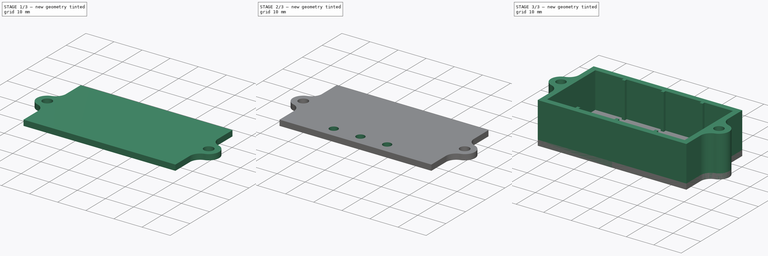
[diagram: build sequence overview — one tinted view per stage of 3, left to right]
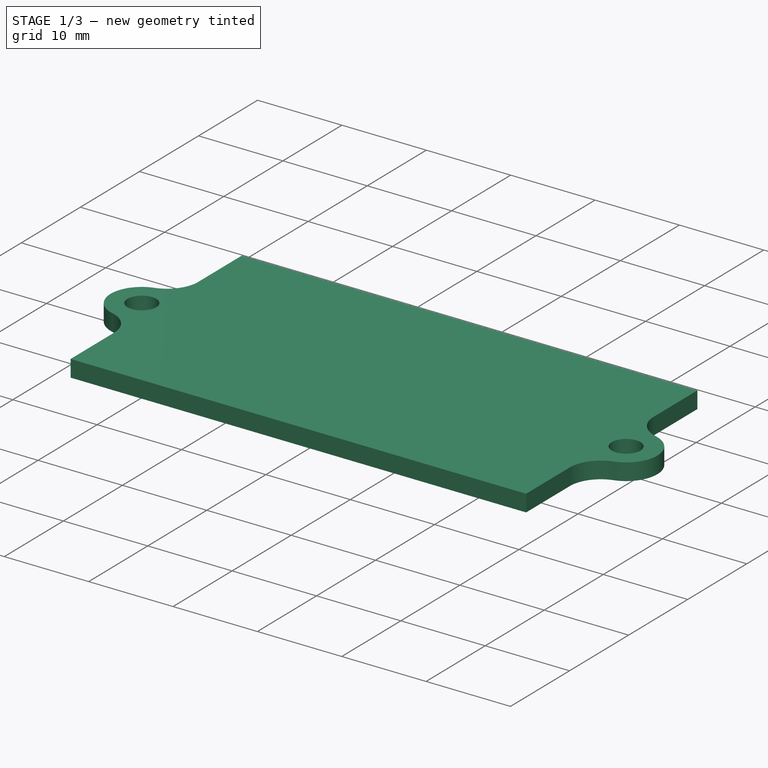
[diagram: stage 1 of 3 — iso view after this stage's code; geometry added in this stage tinted green]
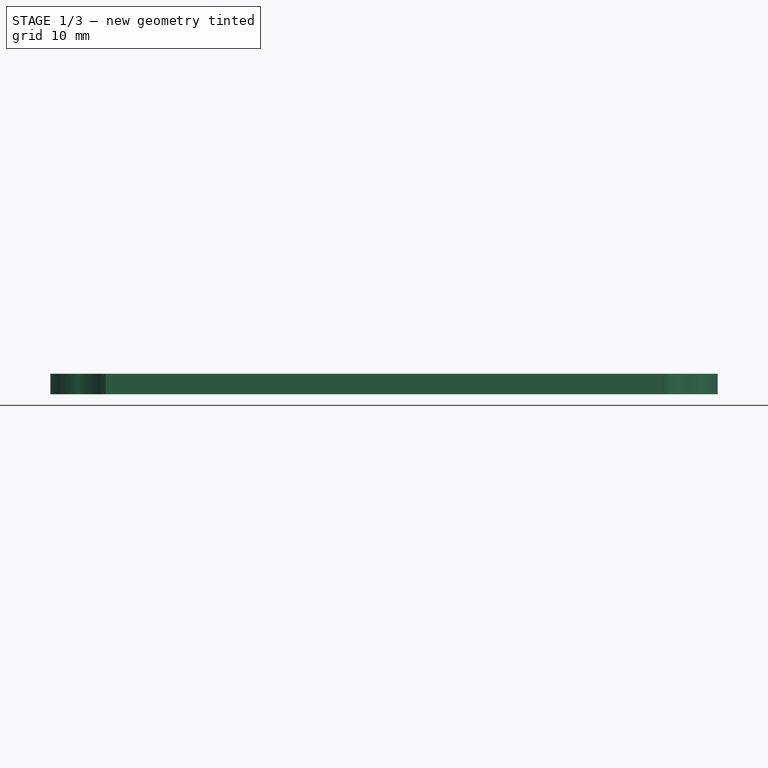
[diagram: stage 1 of 3 — front view after this stage's code; geometry added in this stage tinted green]
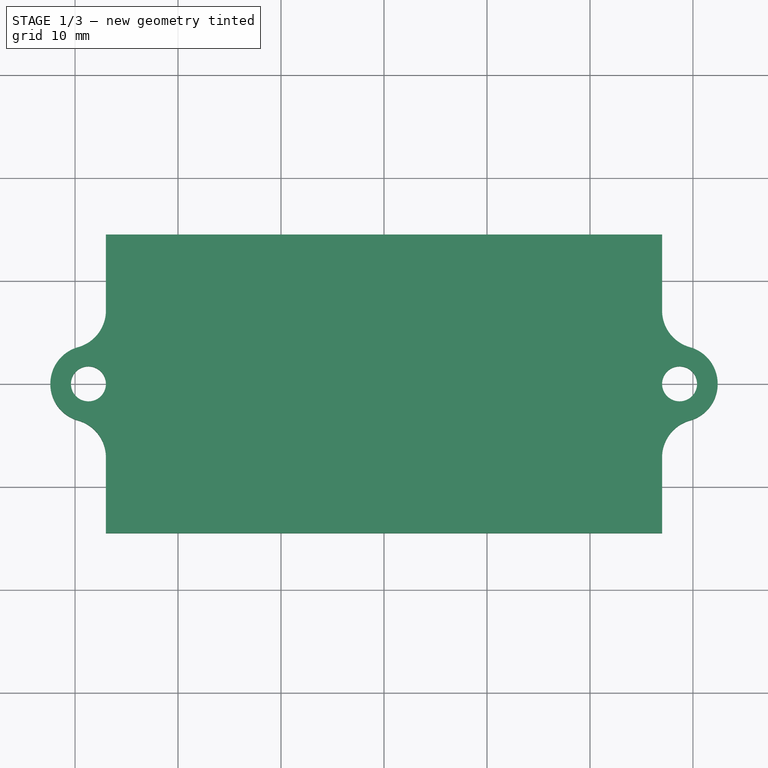
[diagram: stage 1 of 3 — top view after this stage's code; geometry added in this stage tinted green]
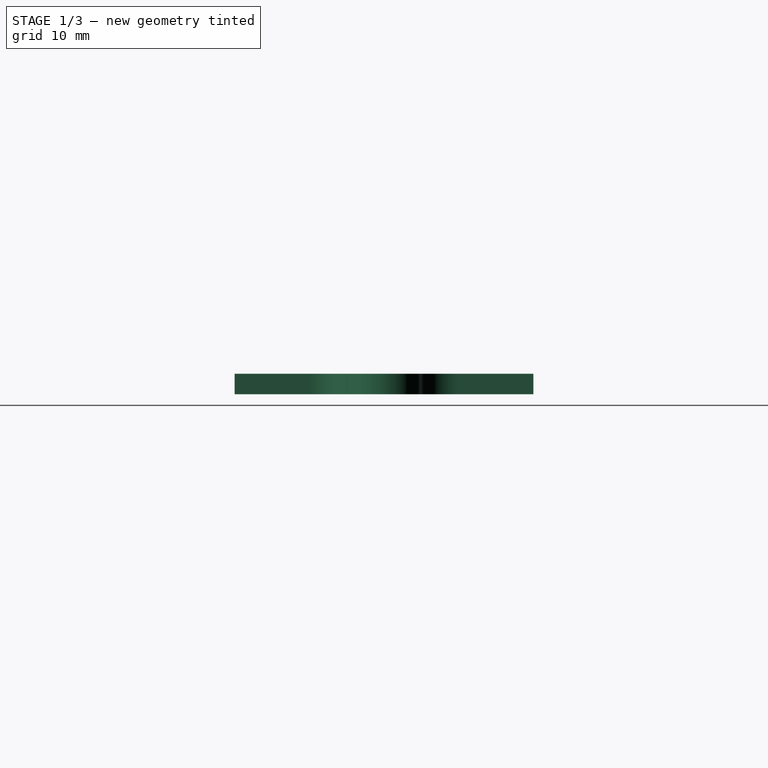
[diagram: stage 1 of 3 — right view after this stage's code; geometry added in this stage tinted green]
FCSTD DOCUMENT  (FreeCAD 0.19R24291 (Git))
Label: HLS-4078-DC5V_casing
License: All rights reserved
LicenseURL: http://en.wikipedia.org/wiki/All_rights_reserved
objects: Sketcher::SketchObject×4, PartDesign::Mirrored×4, PartDesign::Pad×3, PartDesign::MultiTransform×2, PartDesign::Body×2, Spreadsheet::Sheet×1, PartDesign::Pocket×1
note: 20 computed .brp shape members not serialized (recipe doc carries the construction recipe); baked Part::Feature solids carry a one-line shape summary decoded from their .brp

FEATURE [PartDesign::Body] Body  label="casing"
  Group = -> [Sketch,Sketch001,Pad,Pad001,MultiTransform,Mirrored,Mirrored001]
  Origin = -> Origin
  Tip = -> MultiTransform
FEATURE [Sketcher::SketchObject] Sketch002
  FullyConstrained = true
  MapMode = 5
  Support = -> [XY_Plane001]
  expr: Constraints[21] = Spreadsheet.length / 2 + Spreadsheet.space + Spreadsheet.wall_thickness
  expr: Constraints[22] = Spreadsheet.width / 2 + Spreadsheet.space + Spreadsheet.wall_thickness
  expr: Constraints[23] = Spreadsheet.bolt_d
  expr: Constraints[24] = Spreadsheet.bolt_d + Spreadsheet.wall_thickness * 2
  sketch-geometry (8):
    g0: LineSegment StartX=0 StartY=0 StartZ=0 EndX=27 EndY=0 EndZ=0
    g1: LineSegment StartX=27 StartY=7.12461 StartZ=0 EndX=27 EndY=14.5 EndZ=0
    g2: LineSegment StartX=27 StartY=14.5 StartZ=0 EndX=0 EndY=14.5 EndZ=0
    g3: LineSegment StartX=0 StartY=14.5 StartZ=0 EndX=0 EndY=0 EndZ=0
    g4: ArcOfCircle CenterX=28.7 CenterY=0 CenterZ=0 NormalX=0 NormalY=0 NormalZ=1 AngleXU=0 Radius=1.7 StartAngle=0 EndAngle=3.14159
    g5: ArcOfCircle CenterX=28.7 CenterY=0 CenterZ=0 NormalX=0 NormalY=0 NormalZ=1 AngleXU=0 Radius=3.7 StartAngle=0 EndAngle=1.29713
    g6: ArcOfCircle CenterX=30.7 CenterY=7.12461 CenterZ=0 NormalX=0 NormalY=0 NormalZ=1 AngleXU=0 Radius=3.7 StartAngle=3.14159 EndAngle=4.43871
    g7: LineSegment StartX=30.4 StartY=0 StartZ=0 EndX=32.4 EndY=0 EndZ=0
  constraints (25):
    c: Coincident(g1,g2)
    c: Coincident(g2,g3)
    c: Coincident(g3,g0)
    c: Horizontal(g0)
    c: Horizontal(g2)
    c: Vertical(g1)
    c: Vertical(g3)
    c: Coincident(g0,g-1)
    c: PointOnObject(g4,g-1)
    c: Coincident(g4,g0)
    c: PointOnObject(g4,g-1)
    c: Coincident(g5,g4)
    c: PointOnObject(g5,g-1)
    c: Coincident(g6,g5)
    c: Coincident(g1,g6)
    c: Vertical(g1,g0)
    c: Coincident(g7,g4)
    c: Coincident(g7,g5)
    c: Equal(g5,g6)
    c: Tangent(g6,g1)
    c: Tangent(g6,g5)
    c: Distance(g3) = 14.5
    c: Distance(g2) = 27
    c: Diameter(g4) = 3.4
    c: Diameter(g5) = 7.4
FEATURE [PartDesign::Pad] Pad002
  Direction = (1,1,1)
  Length = 2
  Length2 = 100
  Profile = -> Sketch002
  Type = 0
  expr: Length = Spreadsheet.wall_thickness
FEATURE [PartDesign::Mirrored] Mirrored002
  MirrorPlane = -> Sketch002 [V_Axis]
FEATURE [PartDesign::Mirrored] Mirrored003
  MirrorPlane = -> Sketch002 [H_Axis]
FEATURE [PartDesign::MultiTransform] MultiTransform001
  BaseFeature = -> Pad002
  Originals = -> [Pad002]
  Transformations = -> [Mirrored002,Mirrored003]
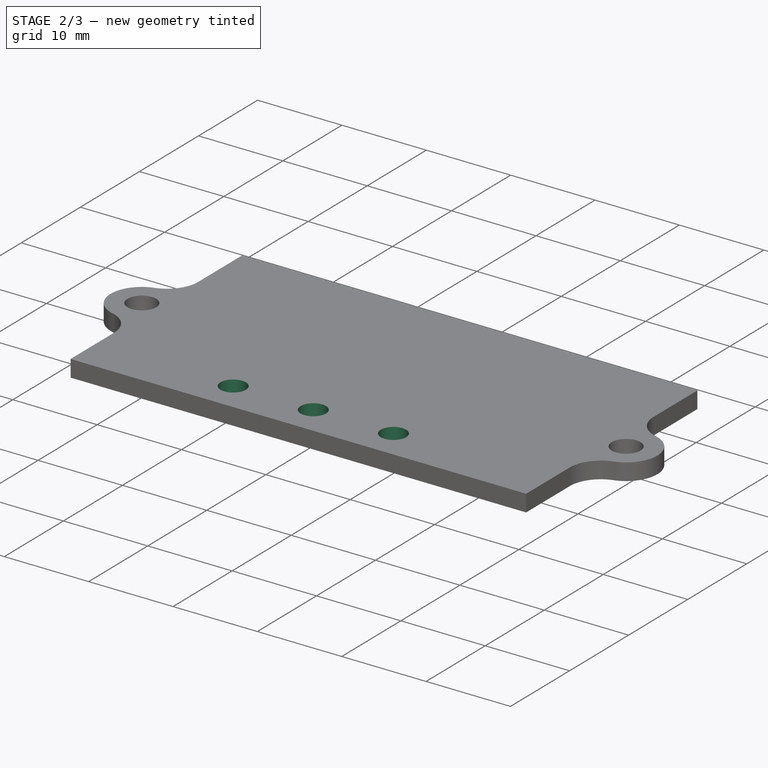
[diagram: stage 2 of 3 — iso view after this stage's code; geometry added in this stage tinted green]
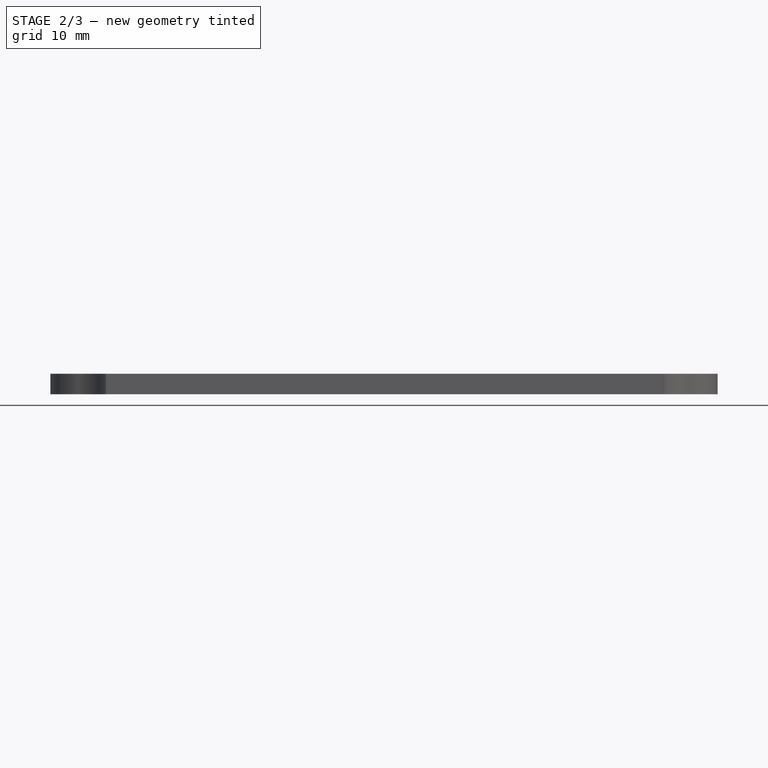
[diagram: stage 2 of 3 — front view after this stage's code; geometry added in this stage tinted green]
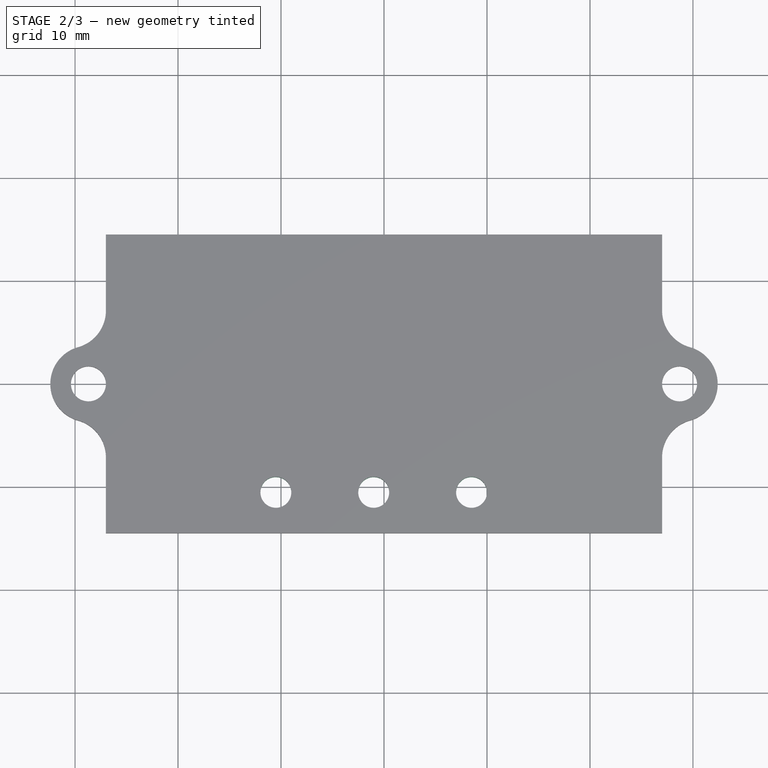
[diagram: stage 2 of 3 — top view after this stage's code; geometry added in this stage tinted green]
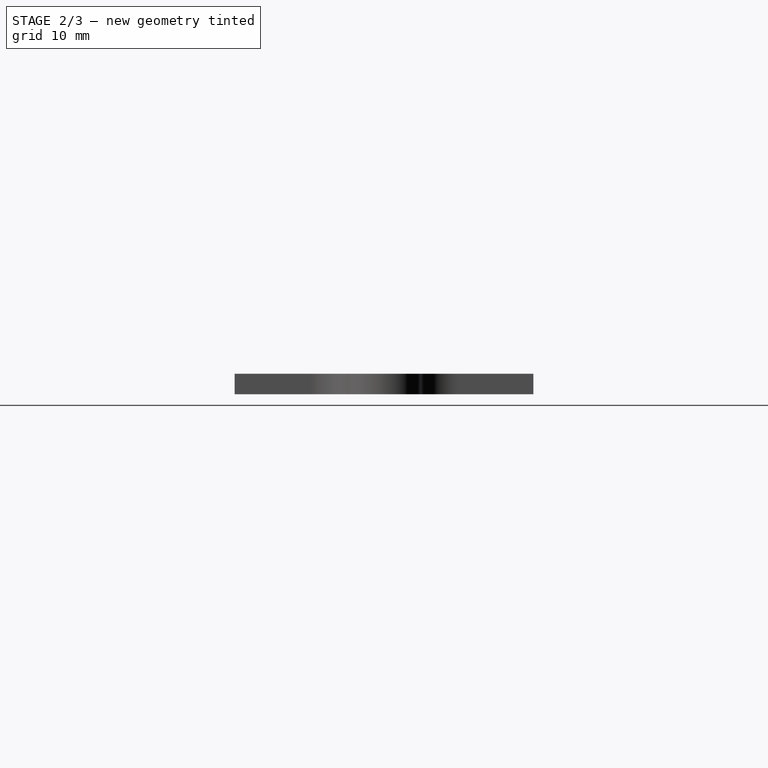
[diagram: stage 2 of 3 — right view after this stage's code; geometry added in this stage tinted green]
FEATURE [Sketcher::SketchObject] Sketch
  FullyConstrained = false
  MapMode = 5
  Support = -> [XY_Plane]
  expr: Constraints[6] = <<Spreadsheet>>.length / 2 + <<Spreadsheet>>.space
  expr: Constraints[5] = <<Spreadsheet>>.width / 2 + <<Spreadsheet>>.space
  expr: Constraints[21] = Spreadsheet.bolt_d
  expr: Constraints[17] = Spreadsheet.wall_thickness
  expr: Constraints[27] = Spreadsheet.bolt_d + Spreadsheet.wall_thickness * 2
  sketch-geometry (17):
    g0: LineSegment StartX=0.55 StartY=12.5 StartZ=0 EndX=13.589 EndY=12.5 EndZ=0
    g1: LineSegment StartX=25 StartY=12.5 StartZ=0 EndX=25 EndY=0 EndZ=0
    g2: LineSegment StartX=27 StartY=2e-16 StartZ=0 EndX=25 EndY=2e-16 EndZ=0
    g3: LineSegment StartX=0 StartY=12.5 StartZ=0 EndX=0 EndY=14.5 EndZ=0
    g4: LineSegment StartX=0 StartY=14.5 StartZ=0 EndX=27 EndY=14.5 EndZ=0
    g5: LineSegment StartX=27 StartY=14.5 StartZ=0 EndX=27 EndY=7.12461 EndZ=0
    g6: ArcOfCircle CenterX=28.7 CenterY=0 CenterZ=0 NormalX=0 NormalY=0 NormalZ=1 AngleXU=0 Radius=1.7 StartAngle=0 EndAngle=3.14159
    g7: ArcOfCircle CenterX=28.7 CenterY=0 CenterZ=0 NormalX=0 NormalY=0 NormalZ=1 AngleXU=0 Radius=3.7 StartAngle=0 EndAngle=1.29712
    g8: ArcOfCircle CenterX=30.7 CenterY=7.12461 CenterZ=0 NormalX=0 NormalY=0 NormalZ=1 AngleXU=0 Radius=3.7 StartAngle=3.14159 EndAngle=4.43872
    g9: LineSegment StartX=30.4 StartY=0 StartZ=0 EndX=32.4 EndY=0 EndZ=0
    g10: LineSegment StartX=0 StartY=11.5 StartZ=0 EndX=0.55 EndY=11.5 EndZ=0
    g11: LineSegment StartX=0.55 StartY=11.5 StartZ=0 EndX=0.55 EndY=12.5 EndZ=0
    g12: LineSegment StartX=0 StartY=11.5 StartZ=0 EndX=0 EndY=12.5 EndZ=0
    g13: LineSegment StartX=14.689 StartY=12.5 StartZ=0 EndX=14.689 EndY=11.5 EndZ=0
    g14: LineSegment StartX=14.689 StartY=11.5 StartZ=0 EndX=13.589 EndY=11.5 EndZ=0
    g15: LineSegment StartX=13.589 StartY=11.5 StartZ=0 EndX=13.589 EndY=12.5 EndZ=0
    g16: LineSegment StartX=14.689 StartY=12.5 StartZ=0 EndX=25 EndY=12.5 EndZ=0
  constraints (51):
    c: Coincident(g16,g1)
    c: Horizontal(g0)
    c: Vertical(g1)
    c: PointOnObject(g1,g-1)
    c: PointOnObject(g12,g-2)
    c: Distance(g1,g-1) = 25
    c: Distance(g-1,g12) = 12.5
    c: Coincident(g3,g4)
    c: Coincident(g4,g5)
    c: Horizontal(g2)
    c: Horizontal(g4)
    c: Vertical(g3)
    c: Vertical(g5)
    c: PointOnObject(g2,g-1)
    c: PointOnObject(g3,g0)
    c: PointOnObject(g2,g1)
    c: Equal(g2,g3)
    c: Distance(g3) = 2
    c: PointOnObject(g6,g-1)
    c: Coincident(g6,g2)
    c: PointOnObject(g6,g-1)
    c: Diameter(g6) = 3.4
    c: Coincident(g7,g6)
    c: PointOnObject(g7,g-1)
    c: Coincident(g8,g7)
    c: Tangent(g7,g8)
    c: Equal(g7,g8)
    c: Diameter(g7) = 7.4
    c: Tangent(g5,g8) = -1.5708
    c: Vertical(g2,g5)
    c: Coincident(g9,g6)
    c: Coincident(g9,g7)
    c: PointOnObject(g10,g-2)
    c: Horizontal(g10)
    c: Coincident(g10,g11)
    c: Vertical(g11)
    c: Coincident(g10,g12)
    c: Vertical(g13)
    c: Coincident(g13,g14)
    c: Horizontal(g14)
    c: Coincident(g14,g15)
    c: Vertical(g15)
    c: Distance(g14) = 1.1
    c: Distance(g13) = 1
    c: Distance(g10) = 0.55
    c: Distance(g11) = 1
    c: Coincident(g0,g15)
    c: Coincident(g16,g13)
    c: Tangent(g0,g16)
    c: Coincident(g0,g11)
    c: Coincident(g12,g3)
FEATURE [Spreadsheet::Sheet] Spreadsheet
  cells = B2(width)=48; C2(height)=13; B3(length)=23; B4(space)=1; B5(wall_thickness)=2; B6(bolt_d)=3.4
FEATURE [Sketcher::SketchObject] Sketch001
  FullyConstrained = true
  MapMode = 5
  Support = -> [XY_Plane]
  expr: Constraints[9] = <<Spreadsheet>>.length / 2 + <<Spreadsheet>>.space
  expr: Constraints[10] = <<Spreadsheet>>.width / 2 + <<Spreadsheet>>.space
  sketch-geometry (4):
    g0: LineSegment StartX=0 StartY=0 StartZ=0 EndX=25 EndY=0 EndZ=0
    g1: LineSegment StartX=25 StartY=0 StartZ=0 EndX=25 EndY=12.5 EndZ=0
    g2: LineSegment StartX=25 StartY=12.5 StartZ=0 EndX=0 EndY=12.5 EndZ=0
    g3: LineSegment StartX=0 StartY=12.5 StartZ=0 EndX=0 EndY=0 EndZ=0
  constraints (11):
    c: Coincident(g0,g1)
    c: Coincident(g1,g2)
    c: Coincident(g2,g3)
    c: Coincident(g3,g0)
    c: Horizontal(g0)
    c: Horizontal(g2)
    c: Vertical(g1)
    c: Vertical(g3)
    c: Coincident(g0,g-1)
    c: Distance(g1) = 12.5
    c: Distance(g0) = 25
FEATURE [PartDesign::Pad] Pad
  Direction = (1,1,1)
  Length = 2
  Length2 = 100
  Profile = -> Sketch001
  Type = 0
  expr: Length = <<Spreadsheet>>.wall_thickness
FEATURE [Sketcher::SketchObject] Sketch003
  FullyConstrained = true
  MapMode = 5
  Support = -> [XY_Plane001]
  expr: Constraints[9] = -(Spreadsheet.width / 2 - 5 - 9.5 + 1)
  expr: Constraints[11] = 9.5
  sketch-geometry (5):
    g0: Circle CenterX=-10.5 CenterY=-10.5371 CenterZ=0 NormalX=0 NormalY=0 NormalZ=1 AngleXU=0 Radius=1.5
    g1: Circle CenterX=-1 CenterY=-10.5371 CenterZ=0 NormalX=0 NormalY=0 NormalZ=1 AngleXU=0 Radius=1.5
    g2: Circle CenterX=8.5 CenterY=-10.5371 CenterZ=0 NormalX=0 NormalY=0 NormalZ=1 AngleXU=0 Radius=1.5
    g3: LineSegment StartX=-10.5 StartY=-10.5371 StartZ=0 EndX=-1 EndY=-10.5371 EndZ=0
    g4: LineSegment StartX=-1 StartY=-10.5371 StartZ=0 EndX=8.5 EndY=-10.5371 EndZ=0
  constraints (13):
    c: Equal(g0,g1)
    c: Equal(g1,g2)
    c: Horizontal(g0,g1)
    c: Horizontal(g1,g2)
    c: Coincident(g3,g0)
    c: Coincident(g3,g1)
    c: Coincident(g4,g1)
    c: Coincident(g4,g2)
    c: Equal(g4,g3)
    c: DistanceX(g0) = -10.5
    c: DistanceY(g0) = -10.5371
    c: Distance(g3) = 9.5
    c: Diameter(g2) = 3
FEATURE [PartDesign::Pocket] Pocket
  BaseFeature = -> MultiTransform001
  Length = 5
  Length2 = 100
  Profile = -> Sketch003
  Reversed = true
  Type = 0
FEATURE [PartDesign::Body] Body001  label="cup"
  Group = -> [Sketch002,Pad002,MultiTransform001,Mirrored002,Mirrored003,Sketch003,Pocket]
  Origin = -> Origin001
  Placement = pos=(0,0,15) rot=(0,0,1;0rad)
  Tip = -> Pocket
  expr: .Placement.Base.z = <<Spreadsheet>>.wall_thickness + <<Spreadsheet>>.height
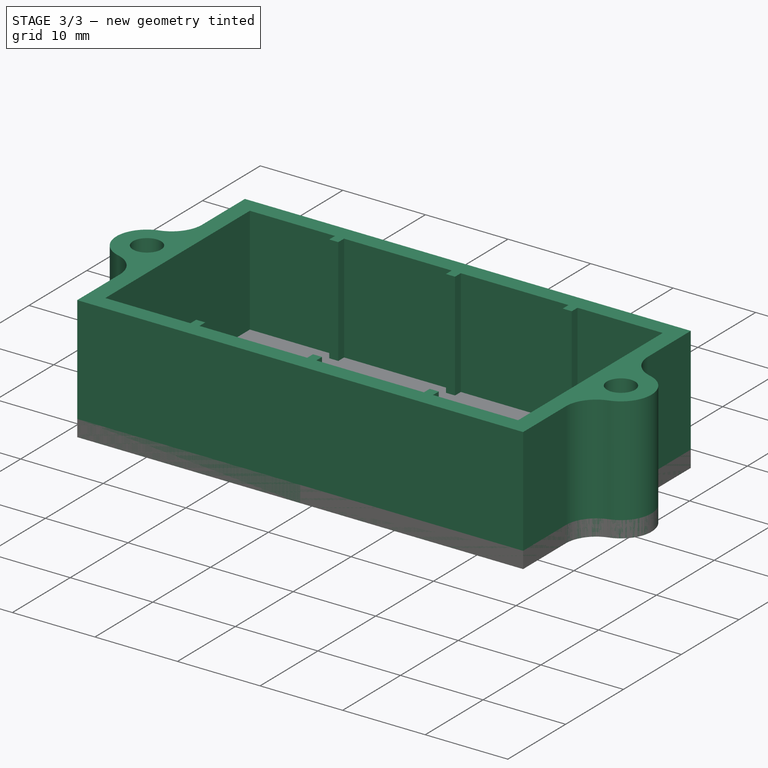
[diagram: stage 3 of 3 — iso view after this stage's code; geometry added in this stage tinted green]
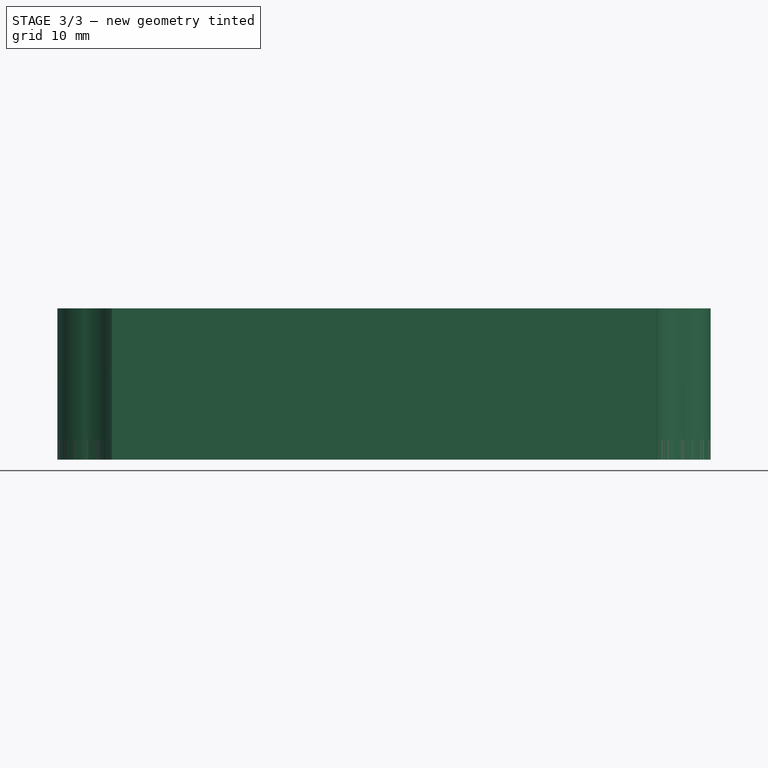
[diagram: stage 3 of 3 — front view after this stage's code; geometry added in this stage tinted green]
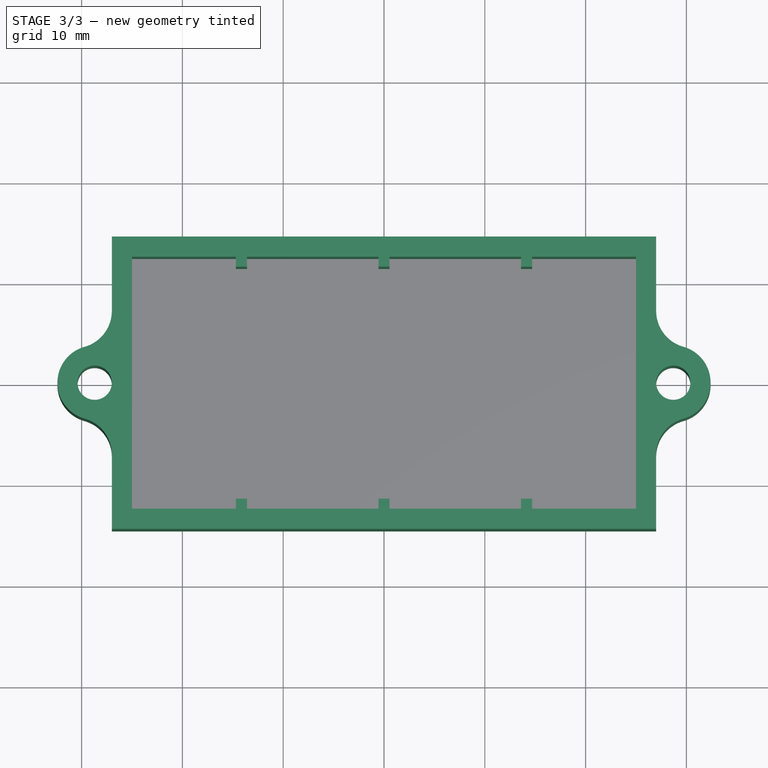
[diagram: stage 3 of 3 — top view after this stage's code; geometry added in this stage tinted green]
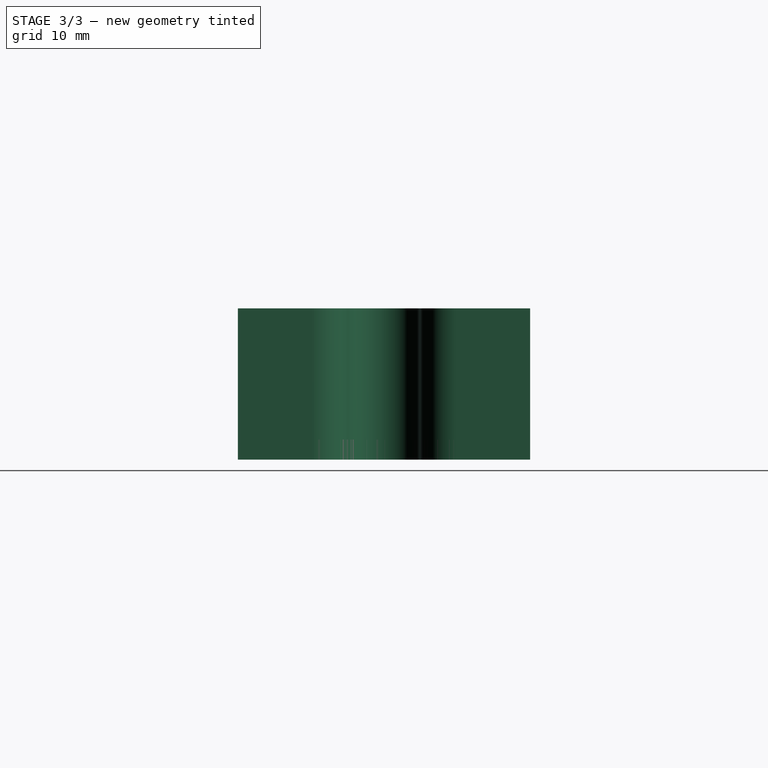
[diagram: stage 3 of 3 — right view after this stage's code; geometry added in this stage tinted green]
FEATURE [PartDesign::Pad] Pad001
  BaseFeature = -> Pad
  Direction = (1,1,1)
  Length = 15
  Length2 = 100
  Profile = -> Sketch
  Type = 0
  expr: Length = <<Spreadsheet>>.wall_thickness + <<Spreadsheet>>.height
FEATURE [PartDesign::Mirrored] Mirrored
  MirrorPlane = -> Sketch001 [V_Axis]
FEATURE [PartDesign::Mirrored] Mirrored001
  MirrorPlane = -> Sketch001 [H_Axis]
FEATURE [PartDesign::MultiTransform] MultiTransform
  BaseFeature = -> Pad001
  Originals = -> [Pad,Pad001]
  Transformations = -> [Mirrored,Mirrored001]
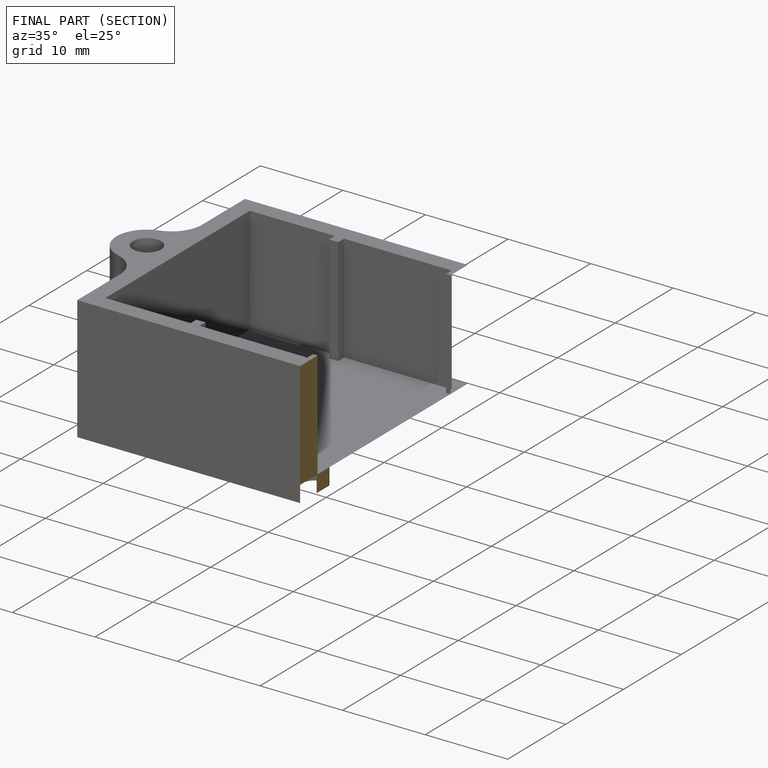
[diagram: finished part — half-section view (interior)]
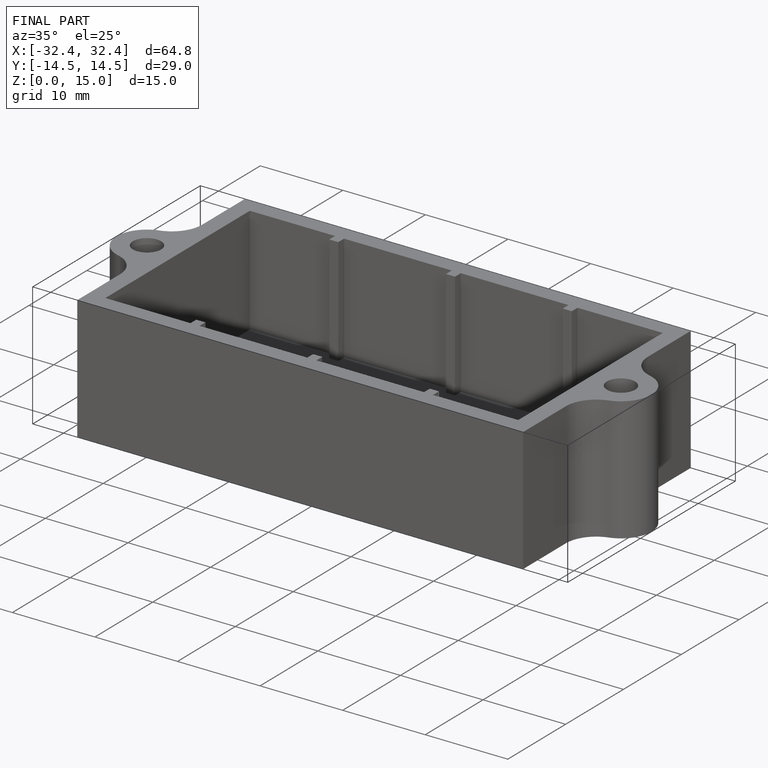
[diagram: finished part — iso view with bounding-box wireframe]
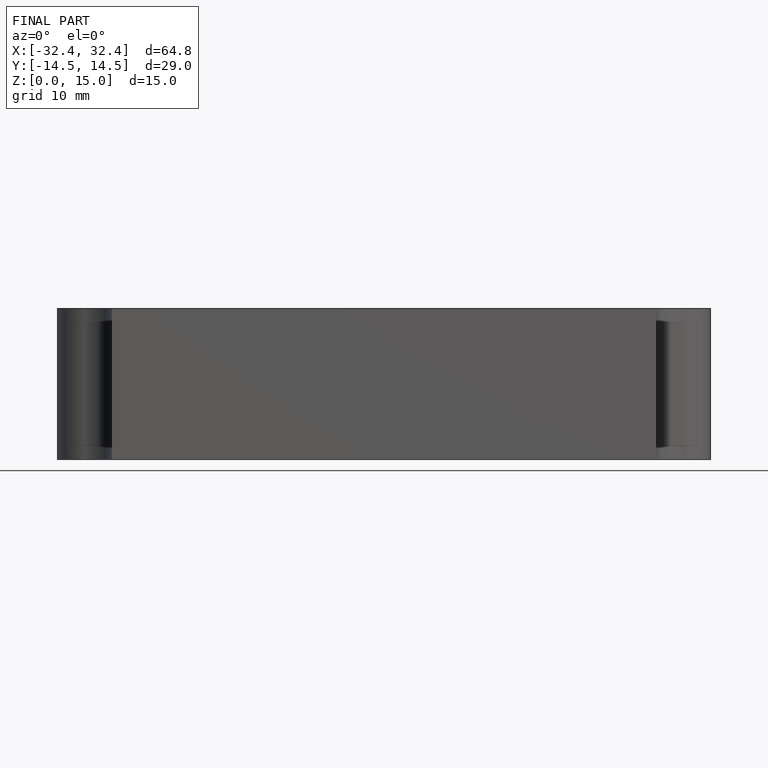
[diagram: finished part — front view with bounding-box wireframe]
